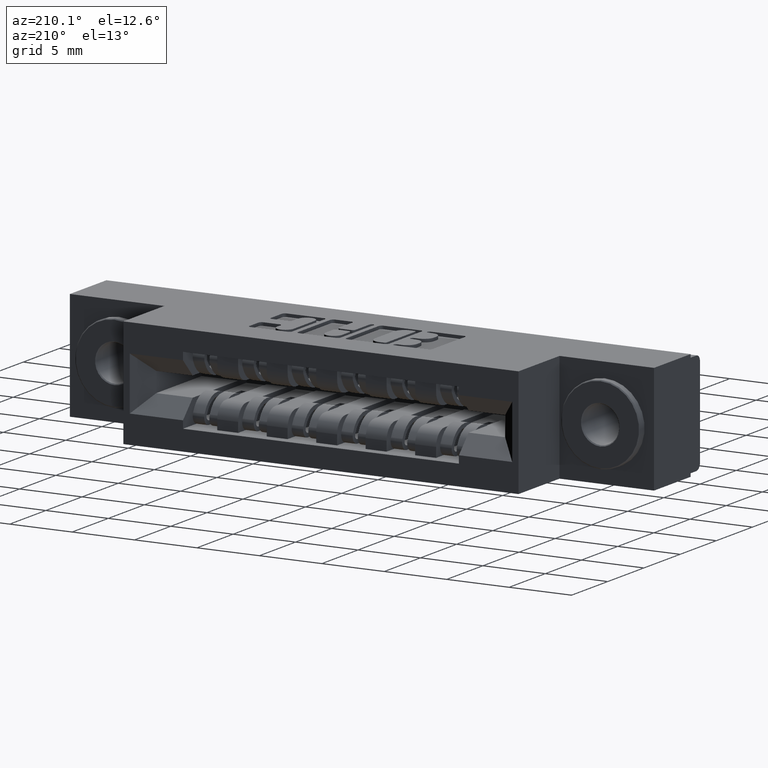
[diagram: clean part render]
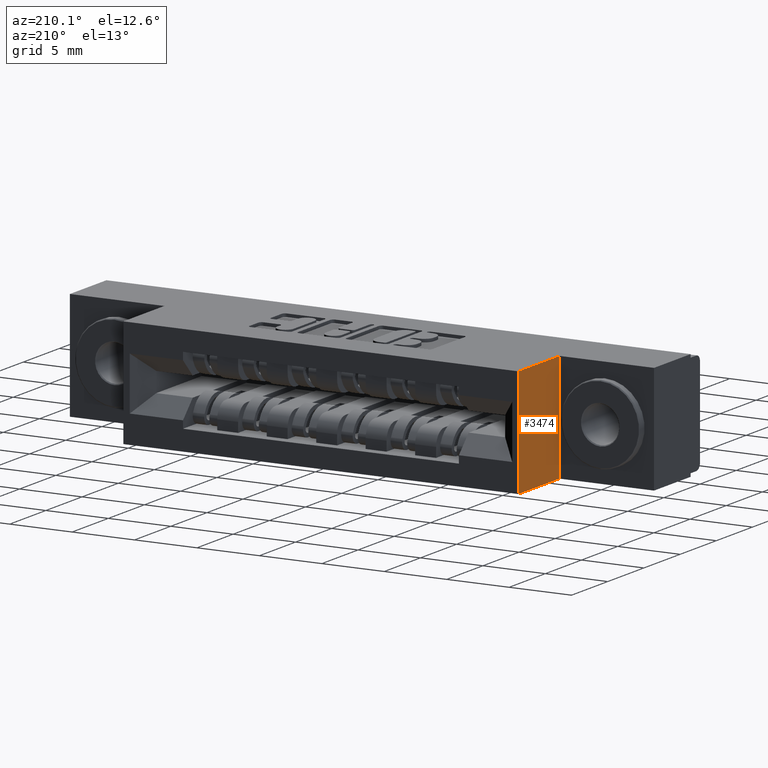
[diagram: same view with one face highlighted and labeled with its STEP entity id]
A machine part, auxiliary view. The second image highlights one B-rep face of the part: STEP entity #3474.
In plain terms, the highlighted planar face has unit normal (1, 0, -0).
Its self-contained STEP definition (entity closure, byte-faithful):
#121 = VECTOR ( 'NONE', #7593, 39.37007874015748100 ) ;
#294 = ORIENTED_EDGE ( 'NONE', *, *, #1253, .T. ) ;
#570 = LINE ( 'NONE', #10524, #9074 ) ;
#649 = ORIENTED_EDGE ( 'NONE', *, *, #11274, .F. ) ;
#1253 = EDGE_CURVE ( 'NONE', #10107, #4215, #4164, .T. ) ;
#1802 = VECTOR ( 'NONE', #10739, 39.37007874015748100 ) ;
#2043 = CARTESIAN_POINT ( 'NONE',  ( 0.2979999999999998200, 0.2499999999999999700, -0.3430000000000000300 ) ) ;
#2756 = DIRECTION ( 'NONE',  ( -3.982285705049946100E-016, 0.0000000000000000000, -1.000000000000000000 ) ) ;
#3157 = CARTESIAN_POINT ( 'NONE',  ( 0.2979999999999999900, 0.4729999999999999800, -1.186721140104883800E-016 ) ) ;
#3474 = ADVANCED_FACE ( 'NONE', ( #6550 ), #5187, .F. ) ;
#3653 = ORIENTED_EDGE ( 'NONE', *, *, #5349, .F. ) ;
#4109 = VECTOR ( 'NONE', #10086, 39.37007874015748100 ) ;
#4164 = LINE ( 'NONE', #6137, #1802 ) ;
#4215 = VERTEX_POINT ( 'NONE', #8972 ) ;
#4244 = CARTESIAN_POINT ( 'NONE',  ( 0.2979999999999998200, 0.2499999999999999700, -0.3430000000000000300 ) ) ;
#5187 = PLANE ( 'NONE',  #11293 ) ;
#5308 = CARTESIAN_POINT ( 'NONE',  ( 0.2979999999999999900, 0.2499999999999999700, -1.186721140104883800E-016 ) ) ;
#5349 = EDGE_CURVE ( 'NONE', #10107, #7694, #570, .T. ) ;
#5405 = EDGE_LOOP ( 'NONE', ( #7689, #649, #3653, #294 ) ) ;
#6137 = CARTESIAN_POINT ( 'NONE',  ( 0.2979999999999999900, 0.2499999999999999700, 0.0000000000000000000 ) ) ;
#6550 = FACE_OUTER_BOUND ( 'NONE', #5405, .T. ) ;
#6943 = DIRECTION ( 'NONE',  ( -3.982285705049946100E-016, 0.0000000000000000000, -1.000000000000000000 ) ) ;
#7163 = VERTEX_POINT ( 'NONE', #11276 ) ;
#7593 = DIRECTION ( 'NONE',  ( -3.982285705049946100E-016, 0.0000000000000000000, -1.000000000000000000 ) ) ;
#7689 = ORIENTED_EDGE ( 'NONE', *, *, #10303, .T. ) ;
#7694 = VERTEX_POINT ( 'NONE', #4244 ) ;
#8760 = LINE ( 'NONE', #2043, #4109 ) ;
#8972 = CARTESIAN_POINT ( 'NONE',  ( 0.2979999999999998800, 0.4729999999999999800, 0.0000000000000000000 ) ) ;
#9074 = VECTOR ( 'NONE', #2756, 39.37007874015748100 ) ;
#9137 = CARTESIAN_POINT ( 'NONE',  ( 0.2979999999999999900, 0.2499999999999999700, 0.0000000000000000000 ) ) ;
#10007 = LINE ( 'NONE', #3157, #121 ) ;
#10086 = DIRECTION ( 'NONE',  ( -0.0000000000000000000, 1.000000000000000000, -0.0000000000000000000 ) ) ;
#10107 = VERTEX_POINT ( 'NONE', #9137 ) ;
#10303 = EDGE_CURVE ( 'NONE', #4215, #7163, #10007, .T. ) ;
#10524 = CARTESIAN_POINT ( 'NONE',  ( 0.2979999999999999900, 0.2499999999999999700, -1.186721140104883800E-016 ) ) ;
#10739 = DIRECTION ( 'NONE',  ( -0.0000000000000000000, 1.000000000000000000, -0.0000000000000000000 ) ) ;
#11274 = EDGE_CURVE ( 'NONE', #7694, #7163, #8760, .T. ) ;
#11276 = CARTESIAN_POINT ( 'NONE',  ( 0.2979999999999998200, 0.4729999999999999800, -0.3430000000000000300 ) ) ;
#11293 = AXIS2_PLACEMENT_3D ( 'NONE', #5308, #11359, #6943 ) ;
#11359 = DIRECTION ( 'NONE',  ( 1.000000000000000000, 0.0000000000000000000, -3.982285705049946100E-016 ) ) ;